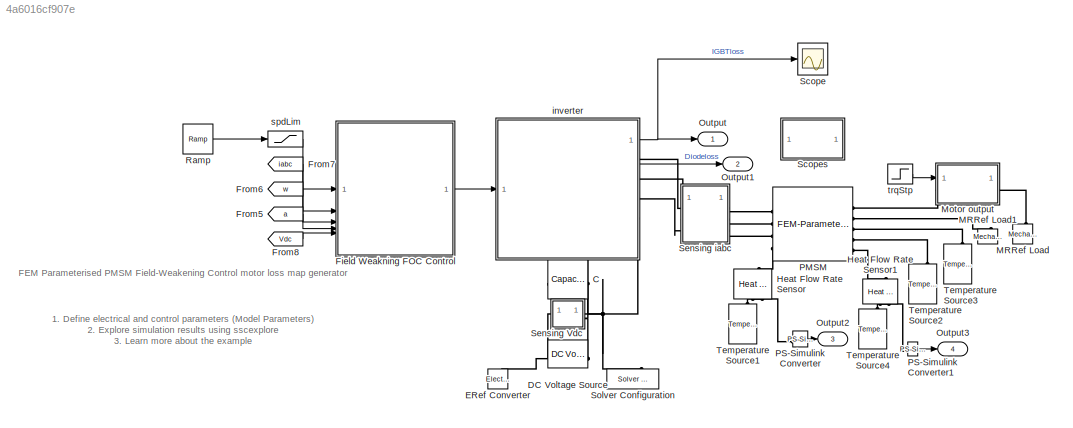
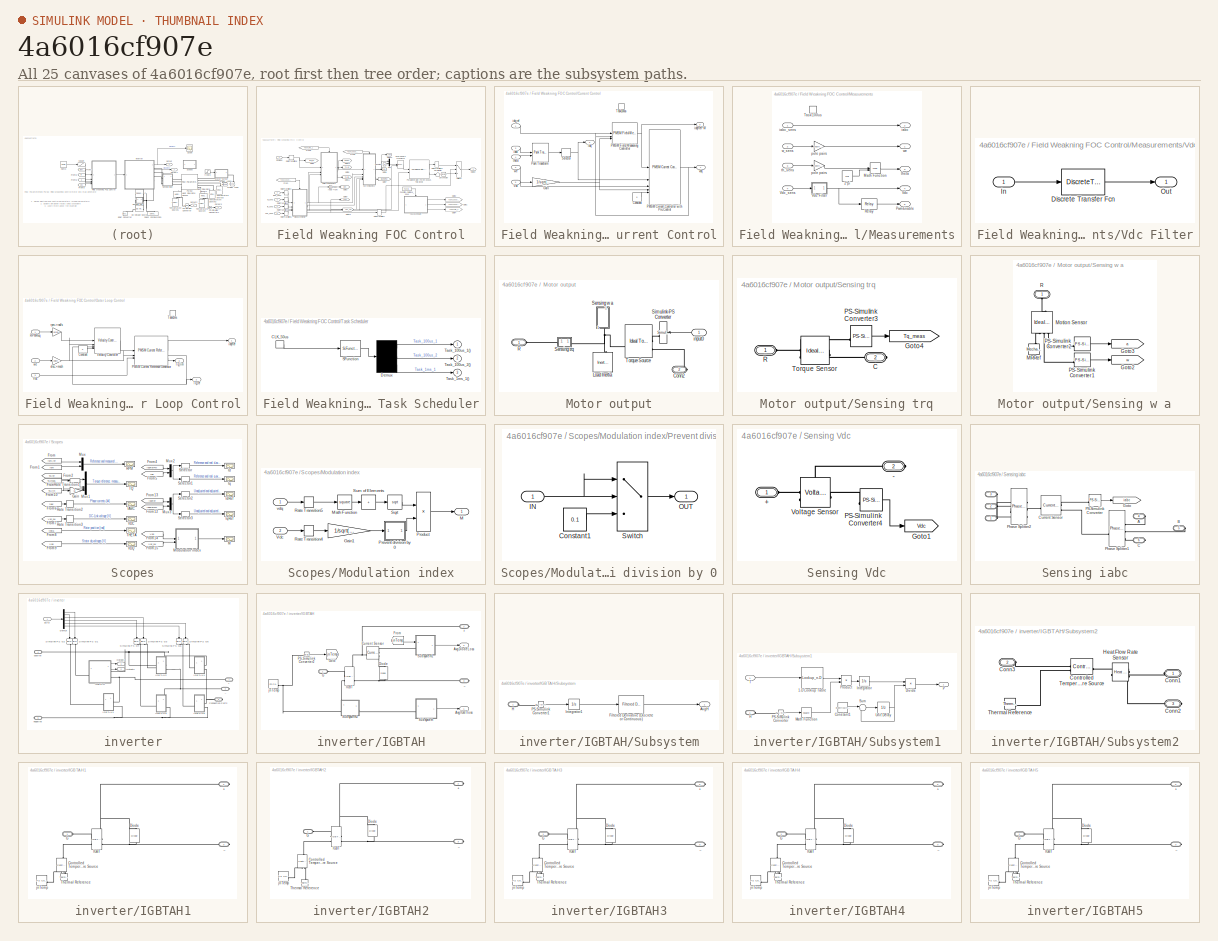
[diagram: thumbnail index - all 25 canvases of the model, root first then tree order]
MODEL slx_4a6016cf907e
KIND model
CONFIG AbsTol = auto
CONFIG EnableMultiTasking = on
CONFIG FixedStep = electricDrive.PmsmControlParams.Ts
CONFIG MaxStep = auto
CONFIG MinStep = auto
CONFIG PreLoadFcn = PMSMSystemParams;\nelectricDrive.PmsmControlParams.Ki_omega = 90;\nelectricDrive.PmsmControlParams.Kp_omega = 2.1;\nelectricDrive.Vnom = 999;\nelectricDrive.PmsmControlParams.Ts = 1e-5;
CONFIG RelTol = 1e-3
CONFIG SampleTimeConstraint = Unconstrained
CONFIG SolverName = ode1be
CONFIG StartTime = 0.0
CONFIG StopTime = 3
BLOCK [Reference] C  REF=fl_lib/Electrical/Electrical Elements/Capacitor
  SourceBlock = fl_lib/Electrical/Electrical Elements/Capacitor
  SourceType = Capacitor
BLOCK [Reference] DC Voltage Source  REF=fl_lib/Electrical/Electrical Sources/DC Voltage Source
  NameLocation = top
  SourceBlock = fl_lib/Electrical/Electrical Sources/DC Voltage Source
  SourceType = DC Voltage Source
BLOCK [Reference] ERef Converter  REF=fl_lib/Electrical/Electrical Elements/Electrical Reference
  NameLocation = right
  SourceBlock = fl_lib/Electrical/Electrical Elements/Electrical Reference
  SourceType = Electrical Reference
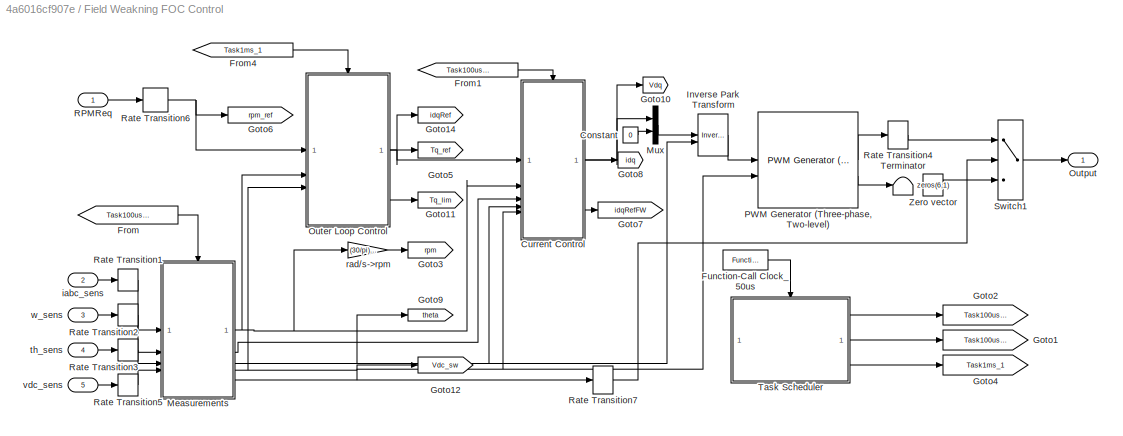
BLOCK [SubSystem] Field Weakning FOC Control
  NameLocation = top
BLOCK [Constant] Field Weakning FOC Control/Constant
  SampleTime = -1
  Value = 0
BLOCK [SubSystem] Field Weakning FOC Control/Current Control
BLOCK [Constant] Field Weakning FOC Control/Current Control/Constant
  SampleTime = -1
  Value = 0
BLOCK [Gain] Field Weakning FOC Control/Current Control/Gain
  Gain = 1/sqrt(3)
BLOCK [Reference] Field Weakning FOC Control/Current Control/PMSM Current Controller with Pre-Control  REF=eePmsmCurrentController/PMSM Current Controller
with Pre-Control
  SourceBlock = eePmsmCurrentController/PMSM Current Controller\nwith Pre-Control
  SourceType = PMSM Current Controller with Pre-Control
BLOCK [Reference] Field Weakning FOC Control/Current Control/PMSM Field-Weakening Controller  REF=eePmsmFwController/PMSM Field-Weakening
Controller
  SourceBlock = eePmsmFwController/PMSM Field-Weakening\nController
  SourceType = PMSM Field-Weakening Controller
BLOCK [Reference] Field Weakning FOC Control/Current Control/Park Transform  REF=eeTransforms/Park Transform
  SourceBlock = eeTransforms/Park Transform
  SourceType = Park Transform
BLOCK [Selector] Field Weakning FOC Control/Current Control/Selector
  IndexOptions = Index vector (dialog)
  Indices = [1 2]
  InputPortWidth = 3
  OutputSizes = 1
BLOCK [TriggerPort] Field Weakning FOC Control/Current Control/Task100us
  PortDimensions = 1
  StatesWhenEnabling = held
  TriggerType = function-call
  VariantControl = Variant
BLOCK [Inport] Field Weakning FOC Control/Current Control/Vdc
  Port = 5
BLOCK [Inport] Field Weakning FOC Control/Current Control/iabc
  Port = 3
BLOCK [Outport] Field Weakning FOC Control/Current Control/idq
  Port = 2
  VectorParamsAs1DForOutWhenUnconnected = off
BLOCK [Outport] Field Weakning FOC Control/Current Control/idqRefFW
  Port = 3
  VectorParamsAs1DForOutWhenUnconnected = off
BLOCK [Inport] Field Weakning FOC Control/Current Control/idq_ref
BLOCK [Inport] Field Weakning FOC Control/Current Control/theta
  Port = 4
BLOCK [Outport] Field Weakning FOC Control/Current Control/vdq
  VectorParamsAs1DForOutWhenUnconnected = off
BLOCK [Inport] Field Weakning FOC Control/Current Control/we
  Port = 2
BLOCK [From] Field Weakning FOC Control/From
  GotoTag = Task100us_1
BLOCK [From] Field Weakning FOC Control/From1
  GotoTag = Task100us_2
BLOCK [From] Field Weakning FOC Control/From4
  GotoTag = Task1ms_1
BLOCK [Reference] Field Weakning FOC Control/Function-Call Clock_50us  REF=simulink/Ports &
Subsystems/Function-Call
Generator
  SourceBlock = simulink/Ports &\nSubsystems/Function-Call\nGenerator
  SourceType = Function-Call Generator
BLOCK [Goto] Field Weakning FOC Control/Goto1
  GotoTag = Task100us_2
BLOCK [Goto] Field Weakning FOC Control/Goto10
  GotoTag = Vdq
  TagVisibility = global
BLOCK [Goto] Field Weakning FOC Control/Goto11
  GotoTag = Tq_lim
  TagVisibility = global
BLOCK [Goto] Field Weakning FOC Control/Goto12
  GotoTag = Vdc_sw
  TagVisibility = global
BLOCK [Goto] Field Weakning FOC Control/Goto14
  GotoTag = idqRef
  TagVisibility = global
BLOCK [Goto] Field Weakning FOC Control/Goto2
  GotoTag = Task100us_1
BLOCK [Goto] Field Weakning FOC Control/Goto3
  GotoTag = rpm
  TagVisibility = global
BLOCK [Goto] Field Weakning FOC Control/Goto4
  GotoTag = Task1ms_1
BLOCK [Goto] Field Weakning FOC Control/Goto5
  GotoTag = Tq_ref
  TagVisibility = global
BLOCK [Goto] Field Weakning FOC Control/Goto6
  GotoTag = rpm_ref
  TagVisibility = global
BLOCK [Goto] Field Weakning FOC Control/Goto7
  GotoTag = idqRefFW
  TagVisibility = global
BLOCK [Goto] Field Weakning FOC Control/Goto8
  GotoTag = idq
  TagVisibility = global
BLOCK [Goto] Field Weakning FOC Control/Goto9
  GotoTag = theta
  TagVisibility = global
BLOCK [Reference] Field Weakning FOC Control/Inverse Park Transform  REF=eeTransforms/Inverse
Park Transform
  SourceBlock = eeTransforms/Inverse\nPark Transform
  SourceType = Inverse Park Transform
BLOCK [SubSystem] Field Weakning FOC Control/Measurements
BLOCK [Constant] Field Weakning FOC Control/Measurements/2*pi
  SampleTime = -1
  Value = 2*pi
BLOCK [Math] Field Weakning FOC Control/Measurements/Math Function
  Operator = mod
  SignedPower = on
BLOCK [Outport] Field Weakning FOC Control/Measurements/PwmEnable
  Port = 5
  VectorParamsAs1DForOutWhenUnconnected = off
BLOCK [Relay] Field Weakning FOC Control/Measurements/Relay
  OffSwitchValue = 100
  OnSwitchValue = 200
BLOCK [TriggerPort] Field Weakning FOC Control/Measurements/Task100us
  PortDimensions = 1
  StatesWhenEnabling = held
  TriggerType = function-call
  VariantControl = Variant
BLOCK [Outport] Field Weakning FOC Control/Measurements/Vdc
  Port = 4
  VectorParamsAs1DForOutWhenUnconnected = off
BLOCK [SubSystem] Field Weakning FOC Control/Measurements/Vdc Filter
BLOCK [DiscreteTransferFcn] Field Weakning FOC Control/Measurements/Vdc Filter/Discrete Transfer Fcn
  Denominator = den
  InputPortMap = u0
  Numerator = num
BLOCK [Inport] Field Weakning FOC Control/Measurements/Vdc Filter/In
BLOCK [Outport] Field Weakning FOC Control/Measurements/Vdc Filter/Out
  VectorParamsAs1DForOutWhenUnconnected = off
BLOCK [Inport] Field Weakning FOC Control/Measurements/Vdc_sens
  Port = 4
BLOCK [Outport] Field Weakning FOC Control/Measurements/iabc
  Port = 2
  VectorParamsAs1DForOutWhenUnconnected = off
BLOCK [Inport] Field Weakning FOC Control/Measurements/iabc_sens
BLOCK [Gain] Field Weakning FOC Control/Measurements/pole pairs
  Gain = electricDrive.PmsmParams.NumPolePairs
BLOCK [Gain] Field Weakning FOC Control/Measurements/pole pairs 
  Gain = electricDrive.PmsmParams.NumPolePairs
BLOCK [Inport] Field Weakning FOC Control/Measurements/th_sens
  Port = 3
BLOCK [Outport] Field Weakning FOC Control/Measurements/theta
  Port = 3
  VectorParamsAs1DForOutWhenUnconnected = off
BLOCK [Inport] Field Weakning FOC Control/Measurements/w_sens
  Port = 2
BLOCK [Outport] Field Weakning FOC Control/Measurements/we
  VectorParamsAs1DForOutWhenUnconnected = off
BLOCK [Mux] Field Weakning FOC Control/Mux
  DisplayOption = bar
  Inputs = 2
BLOCK [SubSystem] Field Weakning FOC Control/Outer Loop Control
BLOCK [Constant] Field Weakning FOC Control/Outer Loop Control/Constant
  SampleTime = -1
  Value = 0
BLOCK [Reference] Field Weakning FOC Control/Outer Loop Control/PMSM Current Reference Generator  REF=eePmsmCurrentReferenceGen/PMSM Current Reference
Generator
  SourceBlock = eePmsmCurrentReferenceGen/PMSM Current Reference\nGenerator
  SourceType = PMSM Current Reference Generator
BLOCK [Inport] Field Weakning FOC Control/Outer Loop Control/RPMReq
BLOCK [TriggerPort] Field Weakning FOC Control/Outer Loop Control/Task1ms
  PortDimensions = 1
  StatesWhenEnabling = held
  TriggerType = function-call
  VariantControl = Variant
BLOCK [Outport] Field Weakning FOC Control/Outer Loop Control/Tq_lim
  Port = 3
  VectorParamsAs1DForOutWhenUnconnected = off
BLOCK [Outport] Field Weakning FOC Control/Outer Loop Control/Tq_ref
  Port = 2
  VectorParamsAs1DForOutWhenUnconnected = off
BLOCK [Inport] Field Weakning FOC Control/Outer Loop Control/Vdc
  Port = 3
BLOCK [Reference] Field Weakning FOC Control/Outer Loop Control/Velocity Controller  REF=eeVelocityController/Velocity Controller
  SourceBlock = eeVelocityController/Velocity Controller
  SourceType = Velocity Controller
BLOCK [Gain] Field Weakning FOC Control/Outer Loop Control/elec->mech
  Gain = 1/electricDrive.PmsmParams.NumPolePairs
BLOCK [Outport] Field Weakning FOC Control/Outer Loop Control/idqRef
  VectorParamsAs1DForOutWhenUnconnected = off
BLOCK [Gain] Field Weakning FOC Control/Outer Loop Control/rpm->rad//s
  Gain = (pi/30)
BLOCK [Inport] Field Weakning FOC Control/Outer Loop Control/we
  Port = 2
BLOCK [Outport] Field Weakning FOC Control/Output
BLOCK [Reference] Field Weakning FOC Control/PWM Generator (Three-phase, Two-level)  REF=eePwmGeneratorTwoLevel/PWM Generator
(Three-phase, Two-level)
  SourceBlock = eePwmGeneratorTwoLevel/PWM Generator\n(Three-phase, Two-level)
  SourceType = PWM Generator (three-phase, two-level)
BLOCK [Inport] Field Weakning FOC Control/RPMReq
BLOCK [RateTransition] Field Weakning FOC Control/Rate Transition1
BLOCK [RateTransition] Field Weakning FOC Control/Rate Transition2
BLOCK [RateTransition] Field Weakning FOC Control/Rate Transition3
BLOCK [RateTransition] Field Weakning FOC Control/Rate Transition4
BLOCK [RateTransition] Field Weakning FOC Control/Rate Transition5
BLOCK [RateTransition] Field Weakning FOC Control/Rate Transition6
BLOCK [RateTransition] Field Weakning FOC Control/Rate Transition7
BLOCK [Switch] Field Weakning FOC Control/Switch1
  Criteria = u2 > Threshold
  InputSameDT = off
  SaturateOnIntegerOverflow = off
BLOCK [SubSystem] Field Weakning FOC Control/Task Scheduler
  ErrorFcn = Stateflow.Translate.translate
  PermitHierarchicalResolution = ExplicitOnly
  SFBlockType = Chart
  TreatAsAtomicUnit = on
BLOCK [Demux] Field Weakning FOC Control/Task Scheduler/ Demux 
  Outputs = 3
BLOCK [S-Function] Field Weakning FOC Control/Task Scheduler/ SFunction 
  EnableBusSupport = off
  FunctionName = sf_sfun
  PortCounts = [1 1]
  SFcnIsStateOwnerBlock = off
  SFunctionDeploymentMode = off
  Tag = Stateflow S-Function 1
BLOCK [TriggerPort] Field Weakning FOC Control/Task Scheduler/CLK_50us
  ShowOutputPort = on
  TriggerType = function-call
  VariantControl = Variant
BLOCK [Outport] Field Weakning FOC Control/Task Scheduler/Task_100us_1()
  VectorParamsAs1DForOutWhenUnconnected = off
BLOCK [Outport] Field Weakning FOC Control/Task Scheduler/Task_100us_2()
  Port = 2
  VectorParamsAs1DForOutWhenUnconnected = off
BLOCK [Outport] Field Weakning FOC Control/Task Scheduler/Task_1ms_1()
  Port = 3
  VectorParamsAs1DForOutWhenUnconnected = off
BLOCK [Terminator] Field Weakning FOC Control/Terminator
BLOCK [Constant] Field Weakning FOC Control/Zero vector
  Value = zeros(6,1)
BLOCK [Inport] Field Weakning FOC Control/iabc_sens
  Port = 2
BLOCK [Gain] Field Weakning FOC Control/rad//s->rpm
  Gain = (30/pi)/electricDrive.PmsmParams.NumPolePairs
BLOCK [Inport] Field Weakning FOC Control/th_sens
  Port = 4
BLOCK [Inport] Field Weakning FOC Control/vdc_sens
  Port = 5
BLOCK [Inport] Field Weakning FOC Control/w_sens
  Port = 3
BLOCK [From] From5
  GotoTag = a
  TagVisibility = global
BLOCK [From] From6
  GotoTag = w
  TagVisibility = global
BLOCK [From] From7
  GotoTag = iabc
  TagVisibility = global
BLOCK [From] From8
  GotoTag = Vdc
  TagVisibility = global
BLOCK [Reference] Heat Flow Rate Sensor  REF=fl_lib/Thermal/Thermal Sensors/Heat Flow Rate
Sensor
  NameLocation = left
  SourceBlock = fl_lib/Thermal/Thermal Sensors/Heat Flow Rate\nSensor
  SourceType = Heat Flow Rate\nSensor
BLOCK [Reference] Heat Flow Rate Sensor1  REF=fl_lib/Thermal/Thermal Sensors/Heat Flow Rate
Sensor
  NameLocation = left
  SourceBlock = fl_lib/Thermal/Thermal Sensors/Heat Flow Rate\nSensor
  SourceType = Heat Flow Rate\nSensor
BLOCK [Reference] MRRef Load  REF=fl_lib/Mechanical/Rotational Elements/Mechanical
Rotational Reference
  NameLocation = right
  SourceBlock = fl_lib/Mechanical/Rotational Elements/Mechanical\nRotational Reference
  SourceType = Mechanical\nRotational Reference
BLOCK [Reference] MRRef Load1  REF=fl_lib/Mechanical/Rotational Elements/Mechanical
Rotational Reference
  NameLocation = right
  SourceBlock = fl_lib/Mechanical/Rotational Elements/Mechanical\nRotational Reference
  SourceType = Mechanical\nRotational Reference
BLOCK [SubSystem] Motor output
  NameLocation = top
BLOCK [PMIOPort] Motor output/Conn2
  Port = 2
  Side = Right
BLOCK [Reference] Motor output/Load Inertia  REF=fl_lib/Mechanical/Rotational Elements/Inertia
  NameLocation = right
  SourceBlock = fl_lib/Mechanical/Rotational Elements/Inertia
  SourceType = Inertia
BLOCK [PMIOPort] Motor output/R
  Side = Left
BLOCK [SubSystem] Motor output/Sensing trq
BLOCK [PMIOPort] Motor output/Sensing trq/C
  Port = 2
  Side = Right
BLOCK [Goto] Motor output/Sensing trq/Goto4
  GotoTag = Tq_meas
  TagVisibility = global
BLOCK [Reference] Motor output/Sensing trq/PS-Simulink Converter3  REF=nesl_utility/PS-Simulink
Converter
  SourceBlock = nesl_utility/PS-Simulink\nConverter
  SourceType = PS-Simulink\nConverter
BLOCK [PMIOPort] Motor output/Sensing trq/R
  Side = Left
BLOCK [Reference] Motor output/Sensing trq/Torque Sensor  REF=fl_lib/Mechanical/Mechanical Sensors/Ideal Torque Sensor
  SourceBlock = fl_lib/Mechanical/Mechanical Sensors/Ideal Torque Sensor
  SourceType = Ideal Torque Sensor
BLOCK [SubSystem] Motor output/Sensing w a
  NameLocation = right
BLOCK [Goto] Motor output/Sensing w a/Goto2
  GotoTag = w
  TagVisibility = global
BLOCK [Goto] Motor output/Sensing w a/Goto3
  GotoTag = a
  TagVisibility = global
BLOCK [Reference] Motor output/Sensing w a/MRRef  REF=fl_lib/Mechanical/Rotational Elements/Mechanical
Rotational Reference
  NameLocation = left
  SourceBlock = fl_lib/Mechanical/Rotational Elements/Mechanical\nRotational Reference
  SourceType = Mechanical\nRotational Reference
BLOCK [Reference] Motor output/Sensing w a/Motion Sensor  REF=fl_lib/Mechanical/Mechanical Sensors/Ideal Rotational
Motion Sensor
  NameLocation = right
  SourceBlock = fl_lib/Mechanical/Mechanical Sensors/Ideal Rotational\nMotion Sensor
  SourceType = Ideal Rotational\nMotion Sensor
BLOCK [Reference] Motor output/Sensing w a/PS-Simulink Converter1  REF=nesl_utility/PS-Simulink
Converter
  SourceBlock = nesl_utility/PS-Simulink\nConverter
  SourceType = PS-Simulink\nConverter
BLOCK [Reference] Motor output/Sensing w a/PS-Simulink Converter2  REF=nesl_utility/PS-Simulink
Converter
  SourceBlock = nesl_utility/PS-Simulink\nConverter
  SourceType = PS-Simulink\nConverter
BLOCK [PMIOPort] Motor output/Sensing w a/R
  NameLocation = right
  Side = Left
BLOCK [Reference] Motor output/Simulink-PS Converter  REF=nesl_utility/Simulink-PS
Converter
  SourceBlock = nesl_utility/Simulink-PS\nConverter
  SourceType = Simulink-PS\nConverter
BLOCK [Reference] Motor output/Torque Source  REF=fl_lib/Mechanical/Mechanical Sources/Ideal Torque Source
  NameLocation = top
  SourceBlock = fl_lib/Mechanical/Mechanical Sources/Ideal Torque Source
  SourceType = Ideal Torque Source
BLOCK [Inport] Motor output/input0
BLOCK [Outport] Output
BLOCK [Outport] Output1
  Port = 2
BLOCK [Outport] Output2
  Port = 3
BLOCK [Outport] Output3
  Port = 4
BLOCK [Reference] PMSM  REF=ee_lib/Electromechanical/Permanent Magnet/FEM-Parameterized
PMSM
  SourceBlock = ee_lib/Electromechanical/Permanent Magnet/FEM-Parameterized\nPMSM
  SourceType = FEM-Parameterized\nPMSM
BLOCK [Reference] PS-Simulink Converter  REF=nesl_utility/PS-Simulink
Converter
  SourceBlock = nesl_utility/PS-Simulink\nConverter
  SourceType = PS-Simulink\nConverter
BLOCK [Reference] PS-Simulink Converter1  REF=nesl_utility/PS-Simulink
Converter
  SourceBlock = nesl_utility/PS-Simulink\nConverter
  SourceType = PS-Simulink\nConverter
BLOCK [Reference] Ramp  REF=simulink/Sources/Ramp
  SourceBlock = simulink/Sources/Ramp
  SourceType = Ramp
BLOCK [Scope] Scope
  Floating = off
  NumInputPorts = 1
  ScopeSpecificationString = Simulink.scopes.TimeScopeBlockCfg('CurrentConfiguration', extmgr.ConfigurationSet(extmgr.Configuration('Core','General UI',true),extmgr.Configuration('Core','Source UI',true),extmgr.Configuration('Sources','WiredSimulink',true,'DataLoggingVariableName','ScopeData1'),extmgr.Configuration('Visuals','Time Domain',true,'SerializedDisplays',{struct('MinYLimReal','-27.52397','MaxYLimReal','247.7157','YL...<+1446ch>
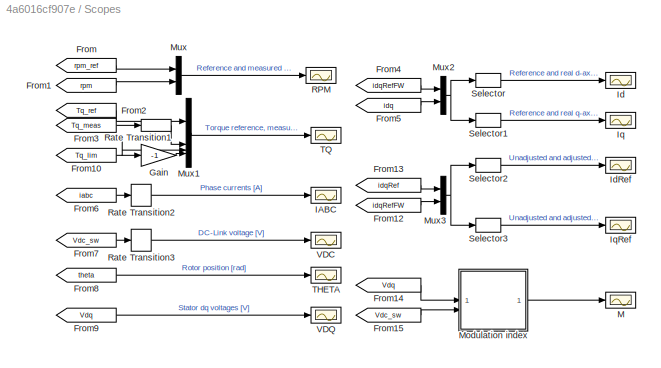
BLOCK [SubSystem] Scopes
BLOCK [From] Scopes/From
  GotoTag = rpm_ref
  TagVisibility = global
BLOCK [From] Scopes/From1
  GotoTag = rpm
  TagVisibility = global
BLOCK [From] Scopes/From10
  GotoTag = Tq_lim
  TagVisibility = global
BLOCK [From] Scopes/From12
  GotoTag = idqRefFW
  TagVisibility = global
BLOCK [From] Scopes/From13
  GotoTag = idqRef
  TagVisibility = global
BLOCK [From] Scopes/From14
  GotoTag = Vdq
  TagVisibility = global
BLOCK [From] Scopes/From15
  GotoTag = Vdc_sw
  TagVisibility = global
BLOCK [From] Scopes/From2
  GotoTag = Tq_ref
  TagVisibility = global
BLOCK [From] Scopes/From3
  GotoTag = Tq_meas
  TagVisibility = global
BLOCK [From] Scopes/From4
  GotoTag = idqRefFW
  TagVisibility = global
BLOCK [From] Scopes/From5
  GotoTag = idq
  TagVisibility = global
BLOCK [From] Scopes/From6
  GotoTag = iabc
  TagVisibility = global
BLOCK [From] Scopes/From7
  GotoTag = Vdc_sw
  TagVisibility = global
BLOCK [From] Scopes/From8
  GotoTag = theta
  TagVisibility = global
BLOCK [From] Scopes/From9
  GotoTag = Vdq
  TagVisibility = global
BLOCK [Gain] Scopes/Gain
  Gain = -1
BLOCK [Scope] Scopes/IABC
  Floating = off
  NumInputPorts = 1
  ScopeSpecificationString = Simulink.scopes.TimeScopeBlockCfg('CurrentConfiguration', extmgr.ConfigurationSet(extmgr.Configuration('Core','General UI',true),extmgr.Configuration('Core','Source UI',true),extmgr.Configuration('Sources','WiredSimulink',true,'DataLoggingVariableName','ScopeData1','DataLoggingSaveFormat','Array','DataLoggingDecimation','1','DataLoggingDecimateData',true),extmgr.Configuration('Visuals','Time Domai...<+1622ch>
BLOCK [Scope] Scopes/Id
  Floating = off
  NumInputPorts = 1
  ScopeSpecificationString = Simulink.scopes.TimeScopeBlockCfg('CurrentConfiguration', extmgr.ConfigurationSet(extmgr.Configuration('Core','General UI',true),extmgr.Configuration('Core','Source UI',true),extmgr.Configuration('Sources','WiredSimulink',true,'DataLoggingVariableName','ScopeData2','DataLoggingSaveFormat','Array','DataLoggingDecimation','1','DataLoggingDecimateData',true),extmgr.Configuration('Visuals','Time Domai...<+1644ch>
BLOCK [Scope] Scopes/IdRef
  Floating = off
  NumInputPorts = 1
  ScopeSpecificationString = Simulink.scopes.TimeScopeBlockCfg('CurrentConfiguration', extmgr.ConfigurationSet(extmgr.Configuration('Core','General UI',true),extmgr.Configuration('Core','Source UI',true),extmgr.Configuration('Sources','WiredSimulink',true,'DataLoggingVariableName','ScopeData1','DataLoggingSaveFormat','Array','DataLoggingDecimation','1','DataLoggingDecimateData',true),extmgr.Configuration('Visuals','Time Domai...<+1639ch>
BLOCK [Scope] Scopes/Iq
  Floating = off
  NumInputPorts = 1
  ScopeSpecificationString = Simulink.scopes.TimeScopeBlockCfg('CurrentConfiguration', extmgr.ConfigurationSet(extmgr.Configuration('Core','General UI',true),extmgr.Configuration('Core','Source UI',true),extmgr.Configuration('Sources','WiredSimulink',true,'DataLoggingVariableName','ScopeData3','DataLoggingSaveFormat','Array','DataLoggingDecimation','1','DataLoggingDecimateData',true),extmgr.Configuration('Visuals','Time Domai...<+1640ch>
BLOCK [Scope] Scopes/IqRef
  Floating = off
  NumInputPorts = 1
  ScopeSpecificationString = Simulink.scopes.TimeScopeBlockCfg('CurrentConfiguration', extmgr.ConfigurationSet(extmgr.Configuration('Core','General UI',true),extmgr.Configuration('Core','Source UI',true),extmgr.Configuration('Sources','WiredSimulink',true,'DataLoggingVariableName','ScopeData2','DataLoggingSaveFormat','Array','DataLoggingDecimation','1','DataLoggingDecimateData',true),extmgr.Configuration('Visuals','Time Domai...<+1645ch>
BLOCK [Scope] Scopes/M
  Floating = off
  NumInputPorts = 1
  ScopeSpecificationString = Simulink.scopes.TimeScopeBlockCfg('CurrentConfiguration', extmgr.ConfigurationSet(extmgr.Configuration('Core','General UI',true),extmgr.Configuration('Core','Source UI',true),extmgr.Configuration('Sources','WiredSimulink',true,'DataLoggingVariableName','ScopeData1','DataLoggingSaveFormat','Array','DataLoggingDecimation','1','DataLoggingDecimateData',true),extmgr.Configuration('Visuals','Time Domai...<+1528ch>
BLOCK [SubSystem] Scopes/Modulation index
BLOCK [Gain] Scopes/Modulation index/Gain1
  Gain = 1/sqrt(3)
BLOCK [Outport] Scopes/Modulation index/M
  VectorParamsAs1DForOutWhenUnconnected = off
BLOCK [Math] Scopes/Modulation index/Math Function
  Operator = square
  SignedPower = on
BLOCK [SubSystem] Scopes/Modulation index/Prevent division by 0
BLOCK [Constant] Scopes/Modulation index/Prevent division by 0/Constant1
  SampleTime = electricDrive.PmsmControlParams.Tsi
  Value = 0.1
BLOCK [Inport] Scopes/Modulation index/Prevent division by 0/IN
BLOCK [Outport] Scopes/Modulation index/Prevent division by 0/OUT
  VectorParamsAs1DForOutWhenUnconnected = off
BLOCK [Switch] Scopes/Modulation index/Prevent division by 0/Switch
  Criteria = u2 > Threshold
  InputSameDT = off
  SaturateOnIntegerOverflow = off
  Threshold = 0.1
BLOCK [Product] Scopes/Modulation index/Product
  Inputs = */
BLOCK [RateTransition] Scopes/Modulation index/Rate Transition4
  OutPortSampleTime = electricDrive.PmsmControlParams.Tsi
BLOCK [RateTransition] Scopes/Modulation index/Rate Transition5
  OutPortSampleTime = electricDrive.PmsmControlParams.Tsi
BLOCK [Sqrt] Scopes/Modulation index/Sqrt
BLOCK [Sum] Scopes/Modulation index/Sum of Elements
  IconShape = rectangular
  Inputs = +
BLOCK [Inport] Scopes/Modulation index/Vdc
  Port = 2
BLOCK [Inport] Scopes/Modulation index/vdq
BLOCK [Mux] Scopes/Mux
  DisplayOption = bar
  Inputs = 2
BLOCK [Mux] Scopes/Mux1
  DisplayOption = bar
BLOCK [Mux] Scopes/Mux2
  DisplayOption = bar
  Inputs = 2
BLOCK [Mux] Scopes/Mux3
  DisplayOption = bar
  Inputs = 2
BLOCK [Scope] Scopes/RPM
  Floating = off
  NumInputPorts = 1
  ScopeSpecificationString = Simulink.scopes.TimeScopeBlockCfg('CurrentConfiguration', extmgr.ConfigurationSet(extmgr.Configuration('Core','General UI',true),extmgr.Configuration('Core','Source UI',true),extmgr.Configuration('Sources','WiredSimulink',true,'DataLoggingVariableName','ScopeData5','DataLoggingSaveFormat','Array','DataLoggingDecimation','1','DataLoggingDecimateData',true),extmgr.Configuration('Visuals','Time Domai...<+1673ch>
BLOCK [RateTransition] Scopes/Rate Transition1
BLOCK [RateTransition] Scopes/Rate Transition2
  OutPortSampleTime = 1e-4
BLOCK [RateTransition] Scopes/Rate Transition3
  OutPortSampleTime = 1e-4
BLOCK [Selector] Scopes/Selector
  IndexOptions = Index vector (dialog)
  Indices = [1 3]
  InputPortWidth = 4
  OutputSizes = 1
BLOCK [Selector] Scopes/Selector1
  IndexOptions = Index vector (dialog)
  Indices = [2 4]
  InputPortWidth = 4
  OutputSizes = 1
BLOCK [Selector] Scopes/Selector2
  IndexOptions = Index vector (dialog)
  Indices = [1 3]
  InputPortWidth = 4
  OutputSizes = 1
BLOCK [Selector] Scopes/Selector3
  IndexOptions = Index vector (dialog)
  Indices = [2 4]
  InputPortWidth = 4
  OutputSizes = 1
BLOCK [Scope] Scopes/THETA
  Floating = off
  NumInputPorts = 1
  ScopeSpecificationString = Simulink.scopes.TimeScopeBlockCfg('CurrentConfiguration', extmgr.ConfigurationSet(extmgr.Configuration('Core','General UI',true),extmgr.Configuration('Core','Source UI',true),extmgr.Configuration('Sources','WiredSimulink',true,'DataLoggingVariableName','ScopeData6','DataLoggingSaveFormat','Array','DataLoggingDecimation','1','DataLoggingDecimateData',true),extmgr.Configuration('Visuals','Time Domai...<+1522ch>
BLOCK [Scope] Scopes/TQ
  Floating = off
  NumInputPorts = 1
  ScopeSpecificationString = Simulink.scopes.TimeScopeBlockCfg('CurrentConfiguration', extmgr.ConfigurationSet(extmgr.Configuration('Core','General UI',true),extmgr.Configuration('Core','Source UI',true),extmgr.Configuration('Sources','WiredSimulink',true,'DataLoggingVariableName','ScopeData7','DataLoggingSaveFormat','Array','DataLoggingDecimation','1','DataLoggingDecimateData',true),extmgr.Configuration('Visuals','Time Domai...<+1737ch>
BLOCK [Scope] Scopes/VDC
  Floating = off
  NumInputPorts = 1
  ScopeSpecificationString = Simulink.scopes.TimeScopeBlockCfg('CurrentConfiguration', extmgr.ConfigurationSet(extmgr.Configuration('Core','General UI',true),extmgr.Configuration('Core','Source UI',true),extmgr.Configuration('Sources','WiredSimulink',true,'DataLoggingVariableName','ScopeData8','DataLoggingSaveFormat','Array','DataLoggingDecimation','1','DataLoggingDecimateData',true),extmgr.Configuration('Visuals','Time Domai...<+1533ch>
BLOCK [Scope] Scopes/VDQ
  Floating = off
  NumInputPorts = 1
  ScopeSpecificationString = Simulink.scopes.TimeScopeBlockCfg('CurrentConfiguration', extmgr.ConfigurationSet(extmgr.Configuration('Core','General UI',true),extmgr.Configuration('Core','Source UI',true),extmgr.Configuration('Sources','WiredSimulink',true,'DataLoggingSaveFormat','Array','DataLoggingDecimation','1','DataLoggingDecimateData',true),extmgr.Configuration('Visuals','Time Domain',true,'SerializedDisplays',{struct('M...<+1526ch>
BLOCK [SubSystem] Sensing Vdc
  NameLocation = top
BLOCK [PMIOPort] Sensing Vdc/+
  Side = Left
BLOCK [PMIOPort] Sensing Vdc/-
  Port = 2
  Side = Right
BLOCK [Goto] Sensing Vdc/Goto1
  GotoTag = Vdc
  TagVisibility = global
BLOCK [Reference] Sensing Vdc/PS-Simulink Converter4  REF=nesl_utility/PS-Simulink
Converter
  SourceBlock = nesl_utility/PS-Simulink\nConverter
  SourceType = PS-Simulink\nConverter
BLOCK [Reference] Sensing Vdc/Voltage Sensor  REF=fl_lib/Electrical/Electrical Sensors/Voltage Sensor
  SourceBlock = fl_lib/Electrical/Electrical Sensors/Voltage Sensor
  SourceType = Voltage Sensor
BLOCK [SubSystem] Sensing iabc
BLOCK [PMIOPort] Sensing iabc/ 
  Port = 3
  Side = Left
BLOCK [PMIOPort] Sensing iabc/  
  Port = 2
  Side = Left
BLOCK [PMIOPort] Sensing iabc/   
  Side = Left
BLOCK [PMIOPort] Sensing iabc/A
  Port = 4
  Side = Right
BLOCK [PMIOPort] Sensing iabc/B
  Port = 5
  Side = Right
BLOCK [PMIOPort] Sensing iabc/C
  Port = 6
  Side = Right
BLOCK [Reference] Sensing iabc/Current Sensor  REF=ee_lib/Sensors &
Transducers/Current Sensor
(Three-Phase)
  SourceBlock = ee_lib/Sensors &\nTransducers/Current Sensor\n(Three-Phase)
  SourceType = Current Sensor\n(Three-Phase)
BLOCK [Goto] Sensing iabc/Goto
  GotoTag = iabc
  TagVisibility = global
BLOCK [Reference] Sensing iabc/PS-Simulink Converter  REF=nesl_utility/PS-Simulink
Converter
  SourceBlock = nesl_utility/PS-Simulink\nConverter
  SourceType = PS-Simulink\nConverter
BLOCK [Reference] Sensing iabc/Phase Splitter1  REF=ee_lib/Connectors &
References/Phase Splitter
  SourceBlock = ee_lib/Connectors &\nReferences/Phase Splitter
  SourceType = Phase Splitter
BLOCK [Reference] Sensing iabc/Phase Splitter2  REF=ee_lib/Connectors &
References/Phase Splitter
  NameLocation = top
  SourceBlock = ee_lib/Connectors &\nReferences/Phase Splitter
  SourceType = Phase Splitter
BLOCK [Reference] Solver Configuration  REF=nesl_utility/Solver
Configuration
  NameLocation = left
  SourceBlock = nesl_utility/Solver\nConfiguration
  SourceType = Solver\nConfiguration
BLOCK [Reference] Temperature Source1  REF=fl_lib/Thermal/Thermal Sources/Temperature Source
  NameLocation = right
  SourceBlock = fl_lib/Thermal/Thermal Sources/Temperature Source
  SourceType = Temperature Source
BLOCK [Reference] Temperature Source2  REF=fl_lib/Thermal/Thermal Sources/Temperature Source
  NameLocation = right
  SourceBlock = fl_lib/Thermal/Thermal Sources/Temperature Source
  SourceType = Temperature Source
BLOCK [Reference] Temperature Source3  REF=fl_lib/Thermal/Thermal Sources/Temperature Source
  NameLocation = right
  SourceBlock = fl_lib/Thermal/Thermal Sources/Temperature Source
  SourceType = Temperature Source
BLOCK [Reference] Temperature Source4  REF=fl_lib/Thermal/Thermal Sources/Temperature Source
  NameLocation = right
  SourceBlock = fl_lib/Thermal/Thermal Sources/Temperature Source
  SourceType = Temperature Source
BLOCK [SubSystem] inverter
  NameLocation = top
  PortSchema = {"entries":[{"content":{"sides":[{"content":{"connectorIds":["In1"]},"type":"ConnectorPlacement.EquallySpacedRectSide","uuid":"1c0d2e2f-5996-49de-aba8-7d7d05bf011b"},{"content":{"connectorIds":["Out1","Out2","RConn1","RConn2","RConn3"],"side":"RIGHT"},"type":"ConnectorPlacement.EquallySpacedRectSide","uuid":"0749270f-663f-41b5-84ca-f1190456067f"},{"content":{"connectorIds":[],"side":"TOP"},"type":...<+435ch>
BLOCK [PMIOPort] inverter/+
  NameLocation = top
  Side = Right
BLOCK [PMIOPort] inverter/Connection Port2
  NameLocation = top
  Port = 3
  Side = Right
BLOCK [Demux] inverter/Demux
  Outputs = 6
BLOCK [SubSystem] inverter/IGBTAH
BLOCK [PMIOPort] inverter/IGBTAH/+
  Port = 2
  Side = Right
BLOCK [Outport] inverter/IGBTAH/AvgDiodeLoss
  Port = 2
BLOCK [Outport] inverter/IGBTAH/AvgIGBTloss
BLOCK [Reference] inverter/IGBTAH/Current Sensor  REF=fl_lib/Electrical/Electrical Sensors/Current Sensor
  SourceBlock = fl_lib/Electrical/Electrical Sensors/Current Sensor
  SourceType = Current Sensor
BLOCK [Reference] inverter/IGBTAH/Diode  REF=fl_lib/Electrical/Electrical Elements/Diode
  NameLocation = right
  SourceBlock = fl_lib/Electrical/Electrical Elements/Diode
  SourceType = Diode
BLOCK [From] inverter/IGBTAH/From
  GotoTag = jnTemp
BLOCK [PMIOPort] inverter/IGBTAH/G
  Side = Left
BLOCK [Goto] inverter/IGBTAH/Goto
  GotoTag = jnTemp
BLOCK [Reference] inverter/IGBTAH/IGBT  REF=ee_lib/Semiconductors &
Converters/IGBT
(Ideal,
Switching)
  SourceBlock = ee_lib/Semiconductors &\nConverters/IGBT\n(Ideal,\nSwitching)
  SourceType = IGBT\n(Ideal,\nSwitching)
BLOCK [Reference] inverter/IGBTAH/PS-Simulink Converter2  REF=nesl_utility/PS-Simulink
Converter
  SourceBlock = nesl_utility/PS-Simulink\nConverter
  SourceType = PS-Simulink\nConverter
BLOCK [SubSystem] inverter/IGBTAH/Subsystem
BLOCK [Outport] inverter/IGBTAH/Subsystem/AvgH
BLOCK [Reference] inverter/IGBTAH/Subsystem/Filtered Derivative (Discrete or Continuous)  REF=eeGeneralControl/Filtered Derivative
(Discrete or Continuous)
  LibrarySourceBlock = ee_sl_lib/General Control/Filtered Derivative\n(Discrete or Continuous)
  SourceBlock = eeGeneralControl/Filtered Derivative\n(Discrete or Continuous)
  SourceType = Filtered Derivative (Discrete or Continuous)
BLOCK [PMIOPort] inverter/IGBTAH/Subsystem/H
  Side = Left
BLOCK [Integrator] inverter/IGBTAH/Subsystem/Integrator1
  InitialCondition = 0.000001
BLOCK [Reference] inverter/IGBTAH/Subsystem/PS-Simulink Converter1  REF=nesl_utility/PS-Simulink
Converter
  SourceBlock = nesl_utility/PS-Simulink\nConverter
  SourceType = PS-Simulink\nConverter
BLOCK [SubSystem] inverter/IGBTAH/Subsystem1
BLOCK [Lookup_n-D] inverter/IGBTAH/Subsystem1/1-D Lookup Table
  BreakpointsForDimension1 = [298.15,398.15,448.15]
  InputPortMap = u0
  InternalRulePriority = Speed
  NumberOfTableDimensions = 1
  RndMeth = Simplest
  Table = [0.0036 0.0056 0.0054]
BLOCK [Constant] inverter/IGBTAH/Subsystem1/Constant1
  Value = electricDrive.PmsmControlParams.Ts
BLOCK [Product] inverter/IGBTAH/Subsystem1/Divide
  Inputs = */
BLOCK [PMIOPort] inverter/IGBTAH/Subsystem1/H
  Side = Left
BLOCK [Integrator] inverter/IGBTAH/Subsystem1/Integrator
BLOCK [Math] inverter/IGBTAH/Subsystem1/Math Function
  Operator = square
BLOCK [Outport] inverter/IGBTAH/Subsystem1/P
BLOCK [Reference] inverter/IGBTAH/Subsystem1/PS-Simulink Converter  REF=nesl_utility/PS-Simulink
Converter
  SourceBlock = nesl_utility/PS-Simulink\nConverter
  SourceType = PS-Simulink\nConverter
BLOCK [Product] inverter/IGBTAH/Subsystem1/Product
BLOCK [Sum] inverter/IGBTAH/Subsystem1/Sum
  Inputs = |++
BLOCK [Inport] inverter/IGBTAH/Subsystem1/T
BLOCK [UnitDelay] inverter/IGBTAH/Subsystem1/Unit Delay
  HasFrameUpgradeWarning = on
  InitialCondition = electricDrive.PmsmControlParams.Ts
  SampleTime = -1
BLOCK [SubSystem] inverter/IGBTAH/Subsystem2
BLOCK [PMIOPort] inverter/IGBTAH/Subsystem2/Conn1
  Side = Left
BLOCK [PMIOPort] inverter/IGBTAH/Subsystem2/Conn2
  Port = 3
  Side = Right
BLOCK [PMIOPort] inverter/IGBTAH/Subsystem2/Conn3
  NameLocation = top
  Port = 2
  Side = Left
BLOCK [Reference] inverter/IGBTAH/Subsystem2/Controlled Temperature Source  REF=fl_lib/Thermal/Thermal Sources/Controlled
Temperature Source
  SourceBlock = fl_lib/Thermal/Thermal Sources/Controlled\nTemperature Source
  SourceType = Controlled\nTemperature Source
BLOCK [Reference] inverter/IGBTAH/Subsystem2/Heat Flow Rate Sensor  REF=fl_lib/Thermal/Thermal Sensors/Heat Flow Rate
Sensor
  NameLocation = top
  SourceBlock = fl_lib/Thermal/Thermal Sensors/Heat Flow Rate\nSensor
  SourceType = Heat Flow Rate\nSensor
BLOCK [Reference] inverter/IGBTAH/Subsystem2/Thermal Reference  REF=fl_lib/Thermal/Thermal Elements/Thermal Reference
  SourceBlock = fl_lib/Thermal/Thermal Elements/Thermal Reference
  SourceType = Thermal Reference
BLOCK [PMIOPort] inverter/IGBTAH/_
  Port = 3
  Side = Right
BLOCK [Reference] inverter/IGBTAH/jnTemp  REF=fl_lib/Physical Signals/Sources/PS Constant
  SourceBlock = fl_lib/Physical Signals/Sources/PS Constant
  SourceType = PS Constant
BLOCK [SubSystem] inverter/IGBTAH1
BLOCK [PMIOPort] inverter/IGBTAH1/+
  Port = 2
  Side = Right
BLOCK [Reference] inverter/IGBTAH1/Controlled Temperature Source  REF=fl_lib/Thermal/Thermal Sources/Controlled
Temperature Source
  NameLocation = right
  SourceBlock = fl_lib/Thermal/Thermal Sources/Controlled\nTemperature Source
  SourceType = Controlled\nTemperature Source
BLOCK [Reference] inverter/IGBTAH1/Diode  REF=fl_lib/Electrical/Electrical Elements/Diode
  NameLocation = right
  SourceBlock = fl_lib/Electrical/Electrical Elements/Diode
  SourceType = Diode
BLOCK [PMIOPort] inverter/IGBTAH1/G
  Side = Left
BLOCK [Reference] inverter/IGBTAH1/IGBT  REF=ee_lib/Semiconductors &
Converters/IGBT
(Ideal,
Switching)
  SourceBlock = ee_lib/Semiconductors &\nConverters/IGBT\n(Ideal,\nSwitching)
  SourceType = IGBT\n(Ideal,\nSwitching)
BLOCK [Reference] inverter/IGBTAH1/Thermal Reference  REF=fl_lib/Thermal/Thermal Elements/Thermal Reference
  NameLocation = right
  SourceBlock = fl_lib/Thermal/Thermal Elements/Thermal Reference
  SourceType = Thermal Reference
BLOCK [PMIOPort] inverter/IGBTAH1/_
  Port = 3
  Side = Right
BLOCK [Reference] inverter/IGBTAH1/jnTemp  REF=fl_lib/Physical Signals/Sources/PS Constant
  SourceBlock = fl_lib/Physical Signals/Sources/PS Constant
  SourceType = PS Constant
BLOCK [SubSystem] inverter/IGBTAH2
BLOCK [PMIOPort] inverter/IGBTAH2/+
  Port = 2
  Side = Right
BLOCK [Reference] inverter/IGBTAH2/Controlled Temperature Source  REF=fl_lib/Thermal/Thermal Sources/Controlled
Temperature Source
  NameLocation = right
  SourceBlock = fl_lib/Thermal/Thermal Sources/Controlled\nTemperature Source
  SourceType = Controlled\nTemperature Source
BLOCK [Reference] inverter/IGBTAH2/Diode  REF=fl_lib/Electrical/Electrical Elements/Diode
  NameLocation = right
  SourceBlock = fl_lib/Electrical/Electrical Elements/Diode
  SourceType = Diode
BLOCK [PMIOPort] inverter/IGBTAH2/G
  Side = Left
BLOCK [Reference] inverter/IGBTAH2/IGBT  REF=ee_lib/Semiconductors &
Converters/IGBT
(Ideal,
Switching)
  SourceBlock = ee_lib/Semiconductors &\nConverters/IGBT\n(Ideal,\nSwitching)
  SourceType = IGBT\n(Ideal,\nSwitching)
BLOCK [Reference] inverter/IGBTAH2/Thermal Reference  REF=fl_lib/Thermal/Thermal Elements/Thermal Reference
  NameLocation = right
  SourceBlock = fl_lib/Thermal/Thermal Elements/Thermal Reference
  SourceType = Thermal Reference
BLOCK [PMIOPort] inverter/IGBTAH2/_
  Port = 3
  Side = Right
BLOCK [Reference] inverter/IGBTAH2/jnTemp  REF=fl_lib/Physical Signals/Sources/PS Constant
  SourceBlock = fl_lib/Physical Signals/Sources/PS Constant
  SourceType = PS Constant
BLOCK [SubSystem] inverter/IGBTAH3
BLOCK [PMIOPort] inverter/IGBTAH3/+
  Port = 2
  Side = Right
BLOCK [Reference] inverter/IGBTAH3/Controlled Temperature Source  REF=fl_lib/Thermal/Thermal Sources/Controlled
Temperature Source
  NameLocation = right
  SourceBlock = fl_lib/Thermal/Thermal Sources/Controlled\nTemperature Source
  SourceType = Controlled\nTemperature Source
BLOCK [Reference] inverter/IGBTAH3/Diode  REF=fl_lib/Electrical/Electrical Elements/Diode
  NameLocation = right
  SourceBlock = fl_lib/Electrical/Electrical Elements/Diode
  SourceType = Diode
BLOCK [PMIOPort] inverter/IGBTAH3/G
  Side = Left
BLOCK [Reference] inverter/IGBTAH3/IGBT  REF=ee_lib/Semiconductors &
Converters/IGBT
(Ideal,
Switching)
  SourceBlock = ee_lib/Semiconductors &\nConverters/IGBT\n(Ideal,\nSwitching)
  SourceType = IGBT\n(Ideal,\nSwitching)
BLOCK [Reference] inverter/IGBTAH3/Thermal Reference  REF=fl_lib/Thermal/Thermal Elements/Thermal Reference
  NameLocation = right
  SourceBlock = fl_lib/Thermal/Thermal Elements/Thermal Reference
  SourceType = Thermal Reference
BLOCK [PMIOPort] inverter/IGBTAH3/_
  Port = 3
  Side = Right
BLOCK [Reference] inverter/IGBTAH3/jnTemp  REF=fl_lib/Physical Signals/Sources/PS Constant
  SourceBlock = fl_lib/Physical Signals/Sources/PS Constant
  SourceType = PS Constant
BLOCK [SubSystem] inverter/IGBTAH4
BLOCK [PMIOPort] inverter/IGBTAH4/+
  Port = 2
  Side = Right
BLOCK [Reference] inverter/IGBTAH4/Controlled Temperature Source  REF=fl_lib/Thermal/Thermal Sources/Controlled
Temperature Source
  NameLocation = right
  SourceBlock = fl_lib/Thermal/Thermal Sources/Controlled\nTemperature Source
  SourceType = Controlled\nTemperature Source
BLOCK [Reference] inverter/IGBTAH4/Diode  REF=fl_lib/Electrical/Electrical Elements/Diode
  NameLocation = right
  SourceBlock = fl_lib/Electrical/Electrical Elements/Diode
  SourceType = Diode
BLOCK [PMIOPort] inverter/IGBTAH4/G
  Side = Left
BLOCK [Reference] inverter/IGBTAH4/IGBT  REF=ee_lib/Semiconductors &
Converters/IGBT
(Ideal,
Switching)
  SourceBlock = ee_lib/Semiconductors &\nConverters/IGBT\n(Ideal,\nSwitching)
  SourceType = IGBT\n(Ideal,\nSwitching)
BLOCK [Reference] inverter/IGBTAH4/Thermal Reference  REF=fl_lib/Thermal/Thermal Elements/Thermal Reference
  NameLocation = right
  SourceBlock = fl_lib/Thermal/Thermal Elements/Thermal Reference
  SourceType = Thermal Reference
BLOCK [PMIOPort] inverter/IGBTAH4/_
  Port = 3
  Side = Right
BLOCK [Reference] inverter/IGBTAH4/jnTemp  REF=fl_lib/Physical Signals/Sources/PS Constant
  SourceBlock = fl_lib/Physical Signals/Sources/PS Constant
  SourceType = PS Constant
BLOCK [SubSystem] inverter/IGBTAH5
BLOCK [PMIOPort] inverter/IGBTAH5/+
  Port = 2
  Side = Right
BLOCK [Reference] inverter/IGBTAH5/Controlled Temperature Source  REF=fl_lib/Thermal/Thermal Sources/Controlled
Temperature Source
  NameLocation = right
  SourceBlock = fl_lib/Thermal/Thermal Sources/Controlled\nTemperature Source
  SourceType = Controlled\nTemperature Source
BLOCK [Reference] inverter/IGBTAH5/Diode  REF=fl_lib/Electrical/Electrical Elements/Diode
  NameLocation = right
  SourceBlock = fl_lib/Electrical/Electrical Elements/Diode
  SourceType = Diode
BLOCK [PMIOPort] inverter/IGBTAH5/G
  Side = Left
BLOCK [Reference] inverter/IGBTAH5/IGBT  REF=ee_lib/Semiconductors &
Converters/IGBT
(Ideal,
Switching)
  SourceBlock = ee_lib/Semiconductors &\nConverters/IGBT\n(Ideal,\nSwitching)
  SourceType = IGBT\n(Ideal,\nSwitching)
BLOCK [Reference] inverter/IGBTAH5/Thermal Reference  REF=fl_lib/Thermal/Thermal Elements/Thermal Reference
  NameLocation = right
  SourceBlock = fl_lib/Thermal/Thermal Elements/Thermal Reference
  SourceType = Thermal Reference
BLOCK [PMIOPort] inverter/IGBTAH5/_
  Port = 3
  Side = Right
BLOCK [Reference] inverter/IGBTAH5/jnTemp  REF=fl_lib/Physical Signals/Sources/PS Constant
  SourceBlock = fl_lib/Physical Signals/Sources/PS Constant
  SourceType = PS Constant
BLOCK [Outport] inverter/Output1
BLOCK [Outport] inverter/Output2
  Port = 2
BLOCK [Reference] inverter/Simulink-PS G1  REF=nesl_utility_internal/Simulink-PS
Converter
  AttributesFormatString = %<Unit>
  NameLocation = right
  SourceBlock = nesl_utility_internal/Simulink-PS\nConverter
  SourceType = Simulink-PS\nConverter
BLOCK [Reference] inverter/Simulink-PS G2  REF=nesl_utility_internal/Simulink-PS
Converter
  AttributesFormatString = %<Unit>
  NameLocation = left
  SourceBlock = nesl_utility_internal/Simulink-PS\nConverter
  SourceType = Simulink-PS\nConverter
BLOCK [Reference] inverter/Simulink-PS G3  REF=nesl_utility_internal/Simulink-PS
Converter
  AttributesFormatString = %<Unit>
  NameLocation = right
  SourceBlock = nesl_utility_internal/Simulink-PS\nConverter
  SourceType = Simulink-PS\nConverter
BLOCK [Reference] inverter/Simulink-PS G4  REF=nesl_utility_internal/Simulink-PS
Converter
  AttributesFormatString = %<Unit>
  NameLocation = left
  SourceBlock = nesl_utility_internal/Simulink-PS\nConverter
  SourceType = Simulink-PS\nConverter
BLOCK [Reference] inverter/Simulink-PS G5  REF=nesl_utility_internal/Simulink-PS
Converter
  AttributesFormatString = %<Unit>
  NameLocation = right
  SourceBlock = nesl_utility_internal/Simulink-PS\nConverter
  SourceType = Simulink-PS\nConverter
BLOCK [Reference] inverter/Simulink-PS G6  REF=nesl_utility_internal/Simulink-PS
Converter
  AttributesFormatString = %<Unit>
  NameLocation = left
  SourceBlock = nesl_utility_internal/Simulink-PS\nConverter
  SourceType = Simulink-PS\nConverter
BLOCK [PMIOPort] inverter/_
  NameLocation = top
  Port = 2
  Side = Right
BLOCK [Inport] inverter/gSig
BLOCK [PMIOPort] inverter/negetive
  Port = 5
  Side = Right
BLOCK [PMIOPort] inverter/postive
  Port = 4
  Side = Right
BLOCK [Saturate] spdLim
  LowerLimit = 0
  NameLocation = top
  UpperLimit = 4000
BLOCK [Step] trqStp
  After = -100
  NameLocation = top
  SampleTime = 0
  Time = 0.11
ANNOTATION (root): 1. Define electrical and control parameters ( Model Parameters ) 2. Explore simulation results using sscexplore 3. Learn more about the example
ANNOTATION (root): FEM Parameterised PMSM Field-Weakening Control motor loss map generator
LINE Field Weakning FOC Control/Constant:1 -> Field Weakning FOC Control/Mux:2
LINE Field Weakning FOC Control/Current Control/Constant:1 -> Field Weakning FOC Control/Current Control/PMSM Current Controller with Pre-Control:5
NET Field Weakning FOC Control/Current Control/Gain:1 -> Field Weakning FOC Control/Current Control/PMSM Current Controller with Pre-Control:4, Field Weakning FOC Control/Current Control/PMSM Field-Weakening Controller:3
NET Field Weakning FOC Control/Current Control/PMSM Current Controller with Pre-Control:1 -> Field Weakning FOC Control/Current Control/PMSM Field-Weakening Controller:2, Field Weakning FOC Control/Current Control/vdq:1
NET Field Weakning FOC Control/Current Control/PMSM Field-Weakening Controller:1 -> Field Weakning FOC Control/Current Control/PMSM Current Controller with Pre-Control:1, Field Weakning FOC Control/Current Control/idqRefFW:1
LINE Field Weakning FOC Control/Current Control/Park Transform:1 -> Field Weakning FOC Control/Current Control/Selector:1
NET Field Weakning FOC Control/Current Control/Selector:1 -> Field Weakning FOC Control/Current Control/PMSM Current Controller with Pre-Control:2, Field Weakning FOC Control/Current Control/idq:1
LINE Field Weakning FOC Control/Current Control/Vdc:1 -> Field Weakning FOC Control/Current Control/Gain:1
LINE Field Weakning FOC Control/Current Control/iabc:1 -> Field Weakning FOC Control/Current Control/Park Transform:1
LINE Field Weakning FOC Control/Current Control/idq_ref:1 -> Field Weakning FOC Control/Current Control/PMSM Field-Weakening Controller:1
LINE Field Weakning FOC Control/Current Control/theta:1 -> Field Weakning FOC Control/Current Control/Park Transform:2
LINE Field Weakning FOC Control/Current Control/we:1 -> Field Weakning FOC Control/Current Control/PMSM Current Controller with Pre-Control:3
NET Field Weakning FOC Control/Current Control:1 -> Field Weakning FOC Control/Goto10:1, Field Weakning FOC Control/Mux:1
LINE Field Weakning FOC Control/Current Control:2 -> Field Weakning FOC Control/Goto8:1
LINE Field Weakning FOC Control/Current Control:3 -> Field Weakning FOC Control/Goto7:1
LINE Field Weakning FOC Control/From1:1 -> Field Weakning FOC Control/Current Control:trigger
LINE Field Weakning FOC Control/From4:1 -> Field Weakning FOC Control/Outer Loop Control:trigger
LINE Field Weakning FOC Control/From:1 -> Field Weakning FOC Control/Measurements:trigger
LINE Field Weakning FOC Control/Function-Call Clock_50us:1 -> Field Weakning FOC Control/Task Scheduler:trigger
LINE Field Weakning FOC Control/Inverse Park Transform:1 -> Field Weakning FOC Control/PWM Generator (Three-phase, Two-level):1
LINE Field Weakning FOC Control/Measurements/2*pi:1 -> Field Weakning FOC Control/Measurements/Math Function:2
LINE Field Weakning FOC Control/Measurements/Math Function:1 -> Field Weakning FOC Control/Measurements/theta:1
LINE Field Weakning FOC Control/Measurements/Relay:1 -> Field Weakning FOC Control/Measurements/PwmEnable:1
LINE Field Weakning FOC Control/Measurements/Vdc Filter/Discrete Transfer Fcn:1 -> Field Weakning FOC Control/Measurements/Vdc Filter/Out:1
LINE Field Weakning FOC Control/Measurements/Vdc Filter/In:1 -> Field Weakning FOC Control/Measurements/Vdc Filter/Discrete Transfer Fcn:1
NET Field Weakning FOC Control/Measurements/Vdc Filter:1 -> Field Weakning FOC Control/Measurements/Relay:1, Field Weakning FOC Control/Measurements/Vdc:1
LINE Field Weakning FOC Control/Measurements/Vdc_sens:1 -> Field Weakning FOC Control/Measurements/Vdc Filter:1
LINE Field Weakning FOC Control/Measurements/iabc_sens:1 -> Field Weakning FOC Control/Measurements/iabc:1
LINE Field Weakning FOC Control/Measurements/pole pairs :1 -> Field Weakning FOC Control/Measurements/Math Function:1
LINE Field Weakning FOC Control/Measurements/pole pairs:1 -> Field Weakning FOC Control/Measurements/we:1
LINE Field Weakning FOC Control/Measurements/th_sens:1 -> Field Weakning FOC Control/Measurements/pole pairs :1
LINE Field Weakning FOC Control/Measurements/w_sens:1 -> Field Weakning FOC Control/Measurements/pole pairs:1
NET Field Weakning FOC Control/Measurements:1 -> Field Weakning FOC Control/Current Control:2, Field Weakning FOC Control/Outer Loop Control:2, Field Weakning FOC Control/rad//s->rpm:1
LINE Field Weakning FOC Control/Measurements:2 -> Field Weakning FOC Control/Current Control:3
NET Field Weakning FOC Control/Measurements:3 -> Field Weakning FOC Control/Current Control:4, Field Weakning FOC Control/Goto9:1, Field Weakning FOC Control/Inverse Park Transform:2
NET Field Weakning FOC Control/Measurements:4 -> Field Weakning FOC Control/Current Control:5, Field Weakning FOC Control/Goto12:1, Field Weakning FOC Control/Outer Loop Control:3, Field Weakning FOC Control/PWM Generator (Three-phase, Two-level):2
LINE Field Weakning FOC Control/Measurements:5 -> Field Weakning FOC Control/Rate Transition7:1
LINE Field Weakning FOC Control/Mux:1 -> Field Weakning FOC Control/Inverse Park Transform:1
LINE Field Weakning FOC Control/Outer Loop Control/Constant:1 -> Field Weakning FOC Control/Outer Loop Control/Velocity Controller:4
LINE Field Weakning FOC Control/Outer Loop Control/PMSM Current Reference Generator:1 -> Field Weakning FOC Control/Outer Loop Control/idqRef:1
NET Field Weakning FOC Control/Outer Loop Control/PMSM Current Reference Generator:2 -> Field Weakning FOC Control/Outer Loop Control/Tq_ref:1, Field Weakning FOC Control/Outer Loop Control/Velocity Controller:3
LINE Field Weakning FOC Control/Outer Loop Control/PMSM Current Reference Generator:3 -> Field Weakning FOC Control/Outer Loop Control/Tq_lim:1
LINE Field Weakning FOC Control/Outer Loop Control/RPMReq:1 -> Field Weakning FOC Control/Outer Loop Control/rpm->rad//s:1
LINE Field Weakning FOC Control/Outer Loop Control/Vdc:1 -> Field Weakning FOC Control/Outer Loop Control/PMSM Current Reference Generator:3
LINE Field Weakning FOC Control/Outer Loop Control/Velocity Controller:1 -> Field Weakning FOC Control/Outer Loop Control/PMSM Current Reference Generator:1
NET Field Weakning FOC Control/Outer Loop Control/elec->mech:1 -> Field Weakning FOC Control/Outer Loop Control/PMSM Current Reference Generator:2, Field Weakning FOC Control/Outer Loop Control/Velocity Controller:2
LINE Field Weakning FOC Control/Outer Loop Control/rpm->rad//s:1 -> Field Weakning FOC Control/Outer Loop Control/Velocity Controller:1
LINE Field Weakning FOC Control/Outer Loop Control/we:1 -> Field Weakning FOC Control/Outer Loop Control/elec->mech:1
NET Field Weakning FOC Control/Outer Loop Control:1 -> Field Weakning FOC Control/Current Control:1, Field Weakning FOC Control/Goto14:1
LINE Field Weakning FOC Control/Outer Loop Control:2 -> Field Weakning FOC Control/Goto5:1
LINE Field Weakning FOC Control/Outer Loop Control:3 -> Field Weakning FOC Control/Goto11:1
LINE Field Weakning FOC Control/PWM Generator (Three-phase, Two-level):1 -> Field Weakning FOC Control/Rate Transition4:1
LINE Field Weakning FOC Control/PWM Generator (Three-phase, Two-level):2 -> Field Weakning FOC Control/Terminator:1
LINE Field Weakning FOC Control/RPMReq:1 -> Field Weakning FOC Control/Rate Transition6:1
LINE Field Weakning FOC Control/Rate Transition1:1 -> Field Weakning FOC Control/Measurements:1
LINE Field Weakning FOC Control/Rate Transition2:1 -> Field Weakning FOC Control/Measurements:2
LINE Field Weakning FOC Control/Rate Transition3:1 -> Field Weakning FOC Control/Measurements:3
LINE Field Weakning FOC Control/Rate Transition4:1 -> Field Weakning FOC Control/Switch1:1
LINE Field Weakning FOC Control/Rate Transition5:1 -> Field Weakning FOC Control/Measurements:4
NET Field Weakning FOC Control/Rate Transition6:1 -> Field Weakning FOC Control/Goto6:1, Field Weakning FOC Control/Outer Loop Control:1
LINE Field Weakning FOC Control/Rate Transition7:1 -> Field Weakning FOC Control/Switch1:2
LINE Field Weakning FOC Control/Switch1:1 -> Field Weakning FOC Control/Output:1
LINE Field Weakning FOC Control/Task Scheduler:1 -> Field Weakning FOC Control/Goto2:1
LINE Field Weakning FOC Control/Task Scheduler:2 -> Field Weakning FOC Control/Goto1:1
LINE Field Weakning FOC Control/Task Scheduler:3 -> Field Weakning FOC Control/Goto4:1
LINE Field Weakning FOC Control/Zero vector:1 -> Field Weakning FOC Control/Switch1:3
LINE Field Weakning FOC Control/iabc_sens:1 -> Field Weakning FOC Control/Rate Transition1:1
LINE Field Weakning FOC Control/rad//s->rpm:1 -> Field Weakning FOC Control/Goto3:1
LINE Field Weakning FOC Control/th_sens:1 -> Field Weakning FOC Control/Rate Transition3:1
LINE Field Weakning FOC Control/vdc_sens:1 -> Field Weakning FOC Control/Rate Transition5:1
LINE Field Weakning FOC Control/w_sens:1 -> Field Weakning FOC Control/Rate Transition2:1
LINE Field Weakning FOC Control:1 -> inverter:1
LINE From5:1 -> Field Weakning FOC Control:4
LINE From6:1 -> Field Weakning FOC Control:3
LINE From7:1 -> Field Weakning FOC Control:2
LINE From8:1 -> Field Weakning FOC Control:5
LINE Motor output/Sensing trq/PS-Simulink Converter3:1 -> Motor output/Sensing trq/Goto4:1
LINE Motor output/Sensing w a/PS-Simulink Converter1:1 -> Motor output/Sensing w a/Goto2:1
LINE Motor output/Sensing w a/PS-Simulink Converter2:1 -> Motor output/Sensing w a/Goto3:1
LINE Motor output/input0:1 -> Motor output/Simulink-PS Converter:1
LINE PS-Simulink Converter1:1 -> Output3:1
LINE PS-Simulink Converter:1 -> Output2:1
LINE Ramp:1 -> spdLim:1
NET Scopes/From10:1 -> Scopes/Gain:1, Scopes/Mux1:3
LINE Scopes/From12:1 -> Scopes/Mux3:2
LINE Scopes/From13:1 -> Scopes/Mux3:1
LINE Scopes/From14:1 -> Scopes/Modulation index:1
LINE Scopes/From15:1 -> Scopes/Modulation index:2
LINE Scopes/From1:1 -> Scopes/Mux:2
LINE Scopes/From2:1 -> Scopes/Mux1:1
LINE Scopes/From3:1 -> Scopes/Rate Transition1:1
LINE Scopes/From4:1 -> Scopes/Mux2:1
LINE Scopes/From5:1 -> Scopes/Mux2:2
LINE Scopes/From6:1 -> Scopes/Rate Transition2:1
LINE Scopes/From7:1 -> Scopes/Rate Transition3:1
LINE Scopes/From8:1 -> Scopes/THETA:1
LINE Scopes/From9:1 -> Scopes/VDQ:1
LINE Scopes/From:1 -> Scopes/Mux:1
LINE Scopes/Gain:1 -> Scopes/Mux1:4
LINE Scopes/Modulation index/Gain1:1 -> Scopes/Modulation index/Prevent division by 0:1
LINE Scopes/Modulation index/Math Function:1 -> Scopes/Modulation index/Sum of Elements:1
LINE Scopes/Modulation index/Prevent division by 0/Constant1:1 -> Scopes/Modulation index/Prevent division by 0/Switch:3
NET Scopes/Modulation index/Prevent division by 0/IN:1 -> Scopes/Modulation index/Prevent division by 0/Switch:1, Scopes/Modulation index/Prevent division by 0/Switch:2
LINE Scopes/Modulation index/Prevent division by 0/Switch:1 -> Scopes/Modulation index/Prevent division by 0/OUT:1
LINE Scopes/Modulation index/Prevent division by 0:1 -> Scopes/Modulation index/Product:2
LINE Scopes/Modulation index/Product:1 -> Scopes/Modulation index/M:1
LINE Scopes/Modulation index/Rate Transition4:1 -> Scopes/Modulation index/Gain1:1
LINE Scopes/Modulation index/Rate Transition5:1 -> Scopes/Modulation index/Math Function:1
LINE Scopes/Modulation index/Sqrt:1 -> Scopes/Modulation index/Product:1
LINE Scopes/Modulation index/Sum of Elements:1 -> Scopes/Modulation index/Sqrt:1
LINE Scopes/Modulation index/Vdc:1 -> Scopes/Modulation index/Rate Transition4:1
LINE Scopes/Modulation index/vdq:1 -> Scopes/Modulation index/Rate Transition5:1
LINE Scopes/Modulation index:1 -> Scopes/M:1
LINE Scopes/Mux1:1 -> Scopes/TQ:1
NET Scopes/Mux2:1 -> Scopes/Selector1:1, Scopes/Selector:1
NET Scopes/Mux3:1 -> Scopes/Selector2:1, Scopes/Selector3:1
LINE Scopes/Mux:1 -> Scopes/RPM:1
LINE Scopes/Rate Transition1:1 -> Scopes/Mux1:2
LINE Scopes/Rate Transition2:1 -> Scopes/IABC:1
LINE Scopes/Rate Transition3:1 -> Scopes/VDC:1
LINE Scopes/Selector1:1 -> Scopes/Iq:1
LINE Scopes/Selector2:1 -> Scopes/IdRef:1
LINE Scopes/Selector3:1 -> Scopes/IqRef:1
LINE Scopes/Selector:1 -> Scopes/Id:1
LINE Sensing Vdc/PS-Simulink Converter4:1 -> Sensing Vdc/Goto1:1
LINE Sensing iabc/PS-Simulink Converter:1 -> Sensing iabc/Goto:1
LINE inverter/Demux:1 -> inverter/Simulink-PS G1:1
LINE inverter/Demux:2 -> inverter/Simulink-PS G2:1
LINE inverter/Demux:3 -> inverter/Simulink-PS G3:1
LINE inverter/Demux:4 -> inverter/Simulink-PS G4:1
LINE inverter/Demux:5 -> inverter/Simulink-PS G5:1
LINE inverter/Demux:6 -> inverter/Simulink-PS G6:1
LINE inverter/IGBTAH/From:1 -> inverter/IGBTAH/Subsystem1:1
LINE inverter/IGBTAH/PS-Simulink Converter2:1 -> inverter/IGBTAH/Goto:1
LINE inverter/IGBTAH/Subsystem/Filtered Derivative (Discrete or Continuous):1 -> inverter/IGBTAH/Subsystem/AvgH:1
LINE inverter/IGBTAH/Subsystem/Integrator1:1 -> inverter/IGBTAH/Subsystem/Filtered Derivative (Discrete or Continuous):1
LINE inverter/IGBTAH/Subsystem/PS-Simulink Converter1:1 -> inverter/IGBTAH/Subsystem/Integrator1:1
LINE inverter/IGBTAH/Subsystem1/1-D Lookup Table:1 -> inverter/IGBTAH/Subsystem1/Product:1
LINE inverter/IGBTAH/Subsystem1/Constant1:1 -> inverter/IGBTAH/Subsystem1/Sum:1
LINE inverter/IGBTAH/Subsystem1/Divide:1 -> inverter/IGBTAH/Subsystem1/P:1
LINE inverter/IGBTAH/Subsystem1/Integrator:1 -> inverter/IGBTAH/Subsystem1/Divide:1
LINE inverter/IGBTAH/Subsystem1/Math Function:1 -> inverter/IGBTAH/Subsystem1/Product:2
LINE inverter/IGBTAH/Subsystem1/PS-Simulink Converter:1 -> inverter/IGBTAH/Subsystem1/Math Function:1
LINE inverter/IGBTAH/Subsystem1/Product:1 -> inverter/IGBTAH/Subsystem1/Integrator:1
LINE inverter/IGBTAH/Subsystem1/Sum:1 -> inverter/IGBTAH/Subsystem1/Unit Delay:1
LINE inverter/IGBTAH/Subsystem1/T:1 -> inverter/IGBTAH/Subsystem1/1-D Lookup Table:1
NET inverter/IGBTAH/Subsystem1/Unit Delay:1 -> inverter/IGBTAH/Subsystem1/Divide:2, inverter/IGBTAH/Subsystem1/Sum:2
LINE inverter/IGBTAH/Subsystem1:1 -> inverter/IGBTAH/AvgDiodeLoss:1
LINE inverter/IGBTAH/Subsystem:1 -> inverter/IGBTAH/AvgIGBTloss:1
LINE inverter/IGBTAH:1 -> inverter/Output1:1
LINE inverter/IGBTAH:2 -> inverter/Output2:1
LINE inverter/gSig:1 -> inverter/Demux:1
NET inverter:1 -> Output:1, Scope:1
LINE inverter:2 -> Output1:1
LINE spdLim:1 -> Field Weakning FOC Control:1
LINE trqStp:1 -> Motor output:1
PNET net1: C:LConn1 -- DC Voltage Source:LConn1 -- ERef Converter:LConn1 -- Sensing Vdc:LConn1 -- inverter:RConn4
PNET net2: C:RConn1 -- DC Voltage Source:RConn1 -- Sensing Vdc:RConn1 -- Solver Configuration:RConn1 -- inverter:RConn5
PLINE Heat Flow Rate Sensor1:LConn1 -- PMSM:RConn5
PLINE Heat Flow Rate Sensor1:RConn1 -- PS-Simulink Converter1:LConn1
PLINE Heat Flow Rate Sensor1:RConn2 -- Temperature Source4:LConn1
PLINE Heat Flow Rate Sensor:LConn1 -- PMSM:LConn4
PLINE Heat Flow Rate Sensor:RConn1 -- PS-Simulink Converter:LConn1
PLINE Heat Flow Rate Sensor:RConn2 -- Temperature Source1:LConn1
PLINE MRRef Load1:LConn1 -- PMSM:RConn2
PLINE MRRef Load:LConn1 -- Motor output:RConn1
PLINE Motor output/Conn2:RConn1 -- Motor output/Torque Source:RConn2
PNET net3: Motor output/Load Inertia:LConn1 -- Motor output/Sensing trq:RConn1 -- Motor output/Sensing w a:LConn1 -- Motor output/Torque Source:LConn1
PLINE Motor output/R:RConn1 -- Motor output/Sensing trq:LConn1
PLINE Motor output/Sensing trq/C:RConn1 -- Motor output/Sensing trq/Torque Sensor:RConn1
PLINE Motor output/Sensing trq/PS-Simulink Converter3:LConn1 -- Motor output/Sensing trq/Torque Sensor:RConn2
PLINE Motor output/Sensing trq/R:RConn1 -- Motor output/Sensing trq/Torque Sensor:LConn1
PLINE Motor output/Sensing w a/MRRef:LConn1 -- Motor output/Sensing w a/Motion Sensor:RConn1
PLINE Motor output/Sensing w a/Motion Sensor:LConn1 -- Motor output/Sensing w a/R:RConn1
PLINE Motor output/Sensing w a/Motion Sensor:RConn2 -- Motor output/Sensing w a/PS-Simulink Converter1:LConn1
PLINE Motor output/Sensing w a/Motion Sensor:RConn3 -- Motor output/Sensing w a/PS-Simulink Converter2:LConn1
PLINE Motor output/Simulink-PS Converter:RConn1 -- Motor output/Torque Source:RConn1
PLINE Motor output:LConn1 -- PMSM:RConn1
PLINE PMSM:LConn1 -- Sensing iabc:RConn1
PLINE PMSM:LConn2 -- Sensing iabc:RConn2
PLINE PMSM:LConn3 -- Sensing iabc:RConn3
PLINE PMSM:RConn3 -- Temperature Source3:LConn1
PLINE PMSM:RConn4 -- Temperature Source2:LConn1
PLINE Sensing Vdc/+:RConn1 -- Sensing Vdc/Voltage Sensor:LConn1
PLINE Sensing Vdc/-:RConn1 -- Sensing Vdc/Voltage Sensor:RConn2
PLINE Sensing Vdc/PS-Simulink Converter4:LConn1 -- Sensing Vdc/Voltage Sensor:RConn1
PLINE Sensing iabc/   :RConn1 -- Sensing iabc/Phase Splitter2:RConn1
PLINE Sensing iabc/  :RConn1 -- Sensing iabc/Phase Splitter2:RConn2
PLINE Sensing iabc/ :RConn1 -- Sensing iabc/Phase Splitter2:RConn3
PLINE Sensing iabc/A:RConn1 -- Sensing iabc/Phase Splitter1:RConn1
PLINE Sensing iabc/B:RConn1 -- Sensing iabc/Phase Splitter1:RConn2
PLINE Sensing iabc/C:RConn1 -- Sensing iabc/Phase Splitter1:RConn3
PLINE Sensing iabc/Current Sensor:LConn1 -- Sensing iabc/Phase Splitter2:LConn1
PLINE Sensing iabc/Current Sensor:RConn1 -- Sensing iabc/PS-Simulink Converter:LConn1
PLINE Sensing iabc/Current Sensor:RConn2 -- Sensing iabc/Phase Splitter1:LConn1
PLINE Sensing iabc:LConn1 -- inverter:RConn1
PLINE Sensing iabc:LConn2 -- inverter:RConn2
PLINE Sensing iabc:LConn3 -- inverter:RConn3
PNET net4: inverter/+:RConn1 -- inverter/IGBTAH1:RConn1 -- inverter/IGBTAH:RConn2
PNET net5: inverter/Connection Port2:RConn1 -- inverter/IGBTAH4:RConn2 -- inverter/IGBTAH5:RConn1
PNET net6: inverter/IGBTAH/+:RConn1 -- inverter/IGBTAH/Current Sensor:LConn1 -- inverter/IGBTAH/IGBT:RConn1
PLINE inverter/IGBTAH/Current Sensor:RConn1 -- inverter/IGBTAH/Subsystem1:LConn1
PLINE inverter/IGBTAH/Current Sensor:RConn2 -- inverter/IGBTAH/Diode:RConn1
PNET net7: inverter/IGBTAH/Diode:LConn1 -- inverter/IGBTAH/IGBT:RConn2 -- inverter/IGBTAH/_:RConn1
PLINE inverter/IGBTAH/G:RConn1 -- inverter/IGBTAH/IGBT:LConn1
PLINE inverter/IGBTAH/IGBT:LConn2 -- inverter/IGBTAH/Subsystem2:LConn1
PNET net8: inverter/IGBTAH/PS-Simulink Converter2:LConn1 -- inverter/IGBTAH/Subsystem2:LConn2 -- inverter/IGBTAH/jnTemp:RConn1
PLINE inverter/IGBTAH/Subsystem/H:RConn1 -- inverter/IGBTAH/Subsystem/PS-Simulink Converter1:LConn1
PLINE inverter/IGBTAH/Subsystem1/H:RConn1 -- inverter/IGBTAH/Subsystem1/PS-Simulink Converter:LConn1
PLINE inverter/IGBTAH/Subsystem2/Conn1:RConn1 -- inverter/IGBTAH/Subsystem2/Heat Flow Rate Sensor:LConn1
PLINE inverter/IGBTAH/Subsystem2/Conn2:RConn1 -- inverter/IGBTAH/Subsystem2/Heat Flow Rate Sensor:RConn1
PLINE inverter/IGBTAH/Subsystem2/Conn3:RConn1 -- inverter/IGBTAH/Subsystem2/Controlled Temperature Source:RConn1
PLINE inverter/IGBTAH/Subsystem2/Controlled Temperature Source:LConn1 -- inverter/IGBTAH/Subsystem2/Heat Flow Rate Sensor:RConn2
PLINE inverter/IGBTAH/Subsystem2/Controlled Temperature Source:RConn2 -- inverter/IGBTAH/Subsystem2/Thermal Reference:LConn1
PLINE inverter/IGBTAH/Subsystem2:RConn1 -- inverter/IGBTAH/Subsystem:LConn1
PNET net9: inverter/IGBTAH1/+:RConn1 -- inverter/IGBTAH1/Diode:RConn1 -- inverter/IGBTAH1/IGBT:RConn1
PLINE inverter/IGBTAH1/Controlled Temperature Source:LConn1 -- inverter/IGBTAH1/IGBT:LConn2
PLINE inverter/IGBTAH1/Controlled Temperature Source:RConn1 -- inverter/IGBTAH1/jnTemp:RConn1
PLINE inverter/IGBTAH1/Controlled Temperature Source:RConn2 -- inverter/IGBTAH1/Thermal Reference:LConn1
PNET net10: inverter/IGBTAH1/Diode:LConn1 -- inverter/IGBTAH1/IGBT:RConn2 -- inverter/IGBTAH1/_:RConn1
PLINE inverter/IGBTAH1/G:RConn1 -- inverter/IGBTAH1/IGBT:LConn1
PLINE inverter/IGBTAH1:LConn1 -- inverter/Simulink-PS G2:RConn1
PNET net11: inverter/IGBTAH1:RConn2 -- inverter/IGBTAH3:RConn2 -- inverter/IGBTAH5:RConn2 -- inverter/negetive:RConn1
PNET net12: inverter/IGBTAH2/+:RConn1 -- inverter/IGBTAH2/Diode:RConn1 -- inverter/IGBTAH2/IGBT:RConn1
PLINE inverter/IGBTAH2/Controlled Temperature Source:LConn1 -- inverter/IGBTAH2/IGBT:LConn2
PLINE inverter/IGBTAH2/Controlled Temperature Source:RConn1 -- inverter/IGBTAH2/jnTemp:RConn1
PLINE inverter/IGBTAH2/Controlled Temperature Source:RConn2 -- inverter/IGBTAH2/Thermal Reference:LConn1
PNET net13: inverter/IGBTAH2/Diode:LConn1 -- inverter/IGBTAH2/IGBT:RConn2 -- inverter/IGBTAH2/_:RConn1
PLINE inverter/IGBTAH2/G:RConn1 -- inverter/IGBTAH2/IGBT:LConn1
PLINE inverter/IGBTAH2:LConn1 -- inverter/Simulink-PS G3:RConn1
PNET net14: inverter/IGBTAH2:RConn1 -- inverter/IGBTAH4:RConn1 -- inverter/IGBTAH:RConn1 -- inverter/postive:RConn1
PNET net15: inverter/IGBTAH2:RConn2 -- inverter/IGBTAH3:RConn1 -- inverter/_:RConn1
PNET net16: inverter/IGBTAH3/+:RConn1 -- inverter/IGBTAH3/Diode:RConn1 -- inverter/IGBTAH3/IGBT:RConn1
PLINE inverter/IGBTAH3/Controlled Temperature Source:LConn1 -- inverter/IGBTAH3/IGBT:LConn2
PLINE inverter/IGBTAH3/Controlled Temperature Source:RConn1 -- inverter/IGBTAH3/jnTemp:RConn1
PLINE inverter/IGBTAH3/Controlled Temperature Source:RConn2 -- inverter/IGBTAH3/Thermal Reference:LConn1
PNET net17: inverter/IGBTAH3/Diode:LConn1 -- inverter/IGBTAH3/IGBT:RConn2 -- inverter/IGBTAH3/_:RConn1
PLINE inverter/IGBTAH3/G:RConn1 -- inverter/IGBTAH3/IGBT:LConn1
PLINE inverter/IGBTAH3:LConn1 -- inverter/Simulink-PS G4:RConn1
PNET net18: inverter/IGBTAH4/+:RConn1 -- inverter/IGBTAH4/Diode:RConn1 -- inverter/IGBTAH4/IGBT:RConn1
PLINE inverter/IGBTAH4/Controlled Temperature Source:LConn1 -- inverter/IGBTAH4/IGBT:LConn2
PLINE inverter/IGBTAH4/Controlled Temperature Source:RConn1 -- inverter/IGBTAH4/jnTemp:RConn1
PLINE inverter/IGBTAH4/Controlled Temperature Source:RConn2 -- inverter/IGBTAH4/Thermal Reference:LConn1
PNET net19: inverter/IGBTAH4/Diode:LConn1 -- inverter/IGBTAH4/IGBT:RConn2 -- inverter/IGBTAH4/_:RConn1
PLINE inverter/IGBTAH4/G:RConn1 -- inverter/IGBTAH4/IGBT:LConn1
PLINE inverter/IGBTAH4:LConn1 -- inverter/Simulink-PS G5:RConn1
PNET net20: inverter/IGBTAH5/+:RConn1 -- inverter/IGBTAH5/Diode:RConn1 -- inverter/IGBTAH5/IGBT:RConn1
PLINE inverter/IGBTAH5/Controlled Temperature Source:LConn1 -- inverter/IGBTAH5/IGBT:LConn2
PLINE inverter/IGBTAH5/Controlled Temperature Source:RConn1 -- inverter/IGBTAH5/jnTemp:RConn1
PLINE inverter/IGBTAH5/Controlled Temperature Source:RConn2 -- inverter/IGBTAH5/Thermal Reference:LConn1
PNET net21: inverter/IGBTAH5/Diode:LConn1 -- inverter/IGBTAH5/IGBT:RConn2 -- inverter/IGBTAH5/_:RConn1
PLINE inverter/IGBTAH5/G:RConn1 -- inverter/IGBTAH5/IGBT:LConn1
PLINE inverter/IGBTAH5:LConn1 -- inverter/Simulink-PS G6:RConn1
PLINE inverter/IGBTAH:LConn1 -- inverter/Simulink-PS G1:RConn1
note: NET lines group one-source signal fan-out (src -> all destinations, sorted); 1:1 wires keep LINE; PNET lines group multi-terminal physical nets as a canonical sorted terminal list (undirected conserving connections); 2-terminal nets keep the pairwise PLINE form
CHART Field Weakning FOC Control/Task Scheduler states=0 transitions=10
CHART  states=0 transitions=0
